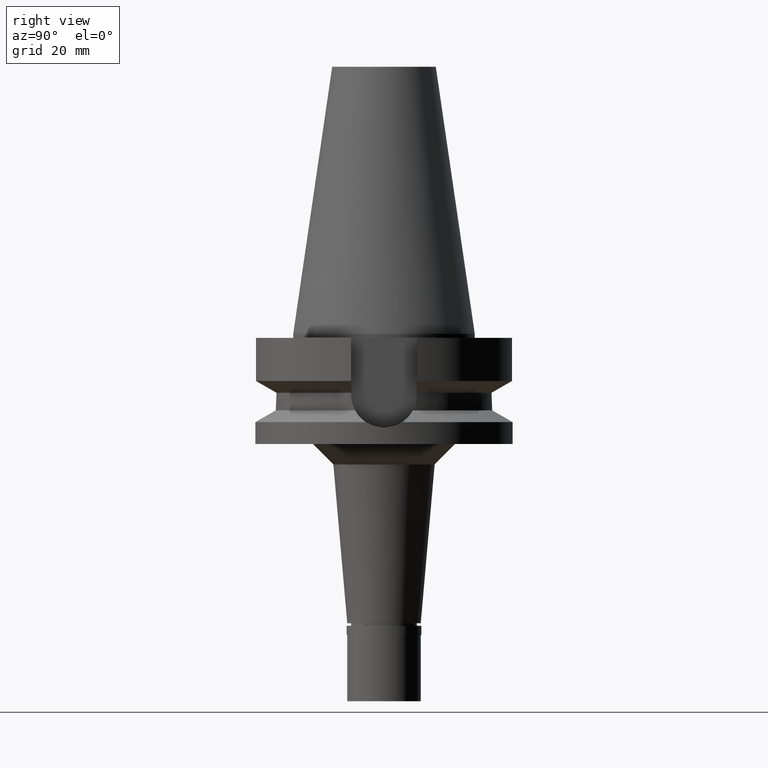
[diagram: clean part render]
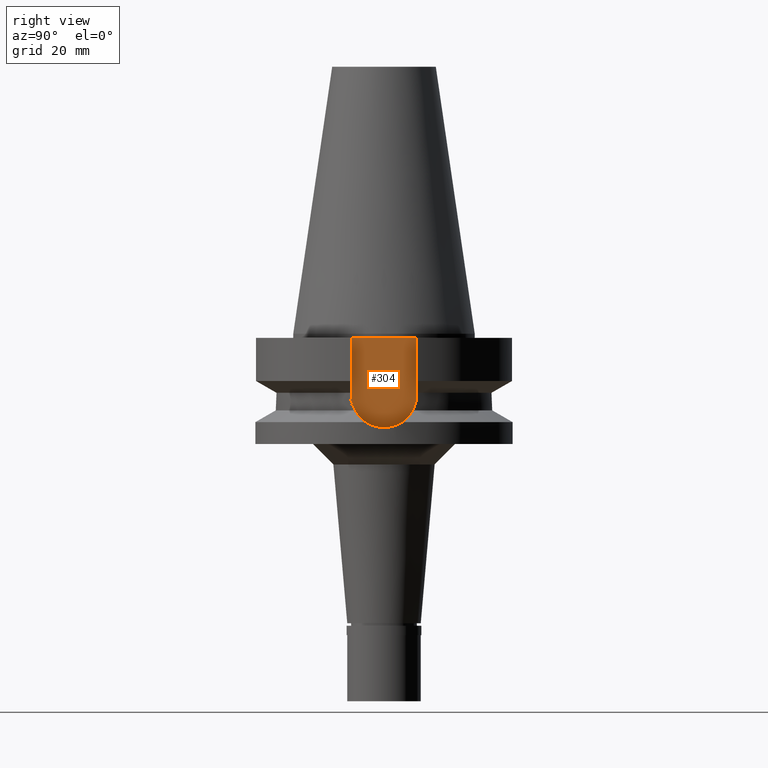
[diagram: same view with one face highlighted and labeled with its STEP entity id]
A machine part, right view. The second image highlights one B-rep face of the part: STEP entity #304.
In plain terms, the highlighted planar face has unit normal (1, 0, 0).
Its self-contained STEP definition (entity closure, byte-faithful):
#18 = VERTEX_POINT ( 'NONE', #609 ) ;
#140 = ORIENTED_EDGE ( 'NONE', *, *, #2145, .F. ) ;
#201 = ORIENTED_EDGE ( 'NONE', *, *, #2247, .T. ) ;
#290 = CARTESIAN_POINT ( 'NONE',  ( 22.50000000000000000, -8.050000000000000711, -14.94999999999999929 ) ) ;
#304 = ADVANCED_FACE ( 'NONE', ( #2706 ), #407, .T. ) ;
#355 = VERTEX_POINT ( 'NONE', #837 ) ;
#382 = DIRECTION ( 'NONE',  ( 0.0000000000000000000, -1.000000000000000000, 0.0000000000000000000 ) ) ;
#397 = DIRECTION ( 'NONE',  ( 0.0000000000000000000, 0.0000000000000000000, -1.000000000000000000 ) ) ;
#407 = PLANE ( 'NONE',  #1474 ) ;
#431 = CARTESIAN_POINT ( 'NONE',  ( 22.50000000000000000, 8.050000000000000711, -14.94999999999999929 ) ) ;
#493 = VECTOR ( 'NONE', #397, 1000.000000000000000 ) ;
#575 = DIRECTION ( 'NONE',  ( 1.000000000000000000, 0.0000000000000000000, 0.0000000000000000000 ) ) ;
#596 = CARTESIAN_POINT ( 'NONE',  ( 22.50000000000000000, 8.050000000000000711, -1.000000000000000000 ) ) ;
#604 = DIRECTION ( 'NONE',  ( 0.0000000000000000000, 1.000000000000000000, 0.0000000000000000000 ) ) ;
#609 = CARTESIAN_POINT ( 'NONE',  ( 22.50000000000000000, -8.050000000000000711, -1.000000000000000000 ) ) ;
#662 = EDGE_CURVE ( 'NONE', #355, #18, #1903, .T. ) ;
#807 = CARTESIAN_POINT ( 'NONE',  ( 22.50000000000000000, 0.0000000000000000000, 0.0000000000000000000 ) ) ;
#809 = DIRECTION ( 'NONE',  ( 0.0000000000000000000, 0.0000000000000000000, -1.000000000000000000 ) ) ;
#837 = CARTESIAN_POINT ( 'NONE',  ( 22.50000000000000000, -8.050000000000000711, -14.94999999999999929 ) ) ;
#895 = EDGE_CURVE ( 'NONE', #1802, #355, #2239, .T. ) ;
#984 = VECTOR ( 'NONE', #382, 1000.000000000000000 ) ;
#1299 = CARTESIAN_POINT ( 'NONE',  ( 22.50000000000000000, 0.0000000000000000000, -14.94999999999999929 ) ) ;
#1373 = DIRECTION ( 'NONE',  ( 0.0000000000000000000, 0.0000000000000000000, 1.000000000000000000 ) ) ;
#1381 = VERTEX_POINT ( 'NONE', #1821 ) ;
#1398 = ORIENTED_EDGE ( 'NONE', *, *, #662, .F. ) ;
#1474 = AXIS2_PLACEMENT_3D ( 'NONE', #807, #575, #604 ) ;
#1762 = LINE ( 'NONE', #2432, #984 ) ;
#1802 = VERTEX_POINT ( 'NONE', #431 ) ;
#1821 = CARTESIAN_POINT ( 'NONE',  ( 22.50000000000000000, 8.050000000000000711, -1.000000000000000000 ) ) ;
#1903 = LINE ( 'NONE', #290, #2783 ) ;
#2145 = EDGE_CURVE ( 'NONE', #1381, #1802, #2470, .T. ) ;
#2216 = DIRECTION ( 'NONE',  ( -1.000000000000000000, 0.0000000000000000000, 0.0000000000000000000 ) ) ;
#2239 = CIRCLE ( 'NONE', #2295, 8.050000000000000711 ) ;
#2247 = EDGE_CURVE ( 'NONE', #1381, #18, #1762, .T. ) ;
#2250 = EDGE_LOOP ( 'NONE', ( #1398, #2757, #140, #201 ) ) ;
#2295 = AXIS2_PLACEMENT_3D ( 'NONE', #1299, #2216, #809 ) ;
#2432 = CARTESIAN_POINT ( 'NONE',  ( 22.50000000000000000, 8.050000000000000711, -1.000000000000000000 ) ) ;
#2470 = LINE ( 'NONE', #596, #493 ) ;
#2706 = FACE_OUTER_BOUND ( 'NONE', #2250, .T. ) ;
#2757 = ORIENTED_EDGE ( 'NONE', *, *, #895, .F. ) ;
#2783 = VECTOR ( 'NONE', #1373, 1000.000000000000000 ) ;